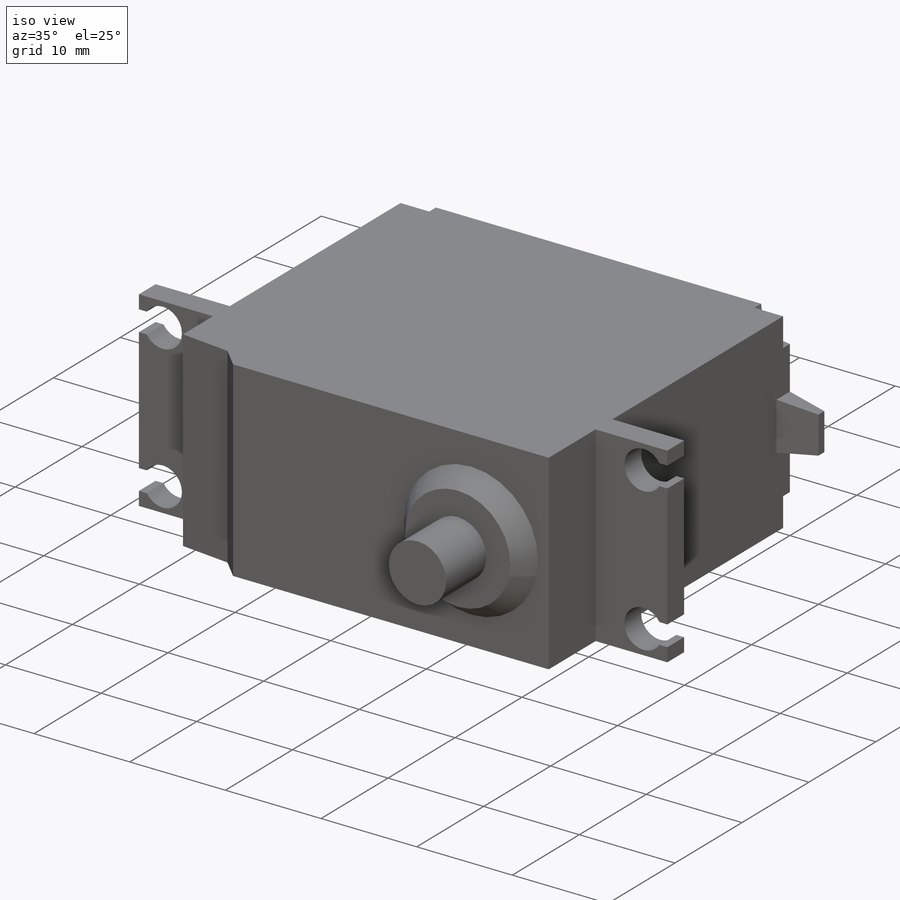
[diagram: iso view]
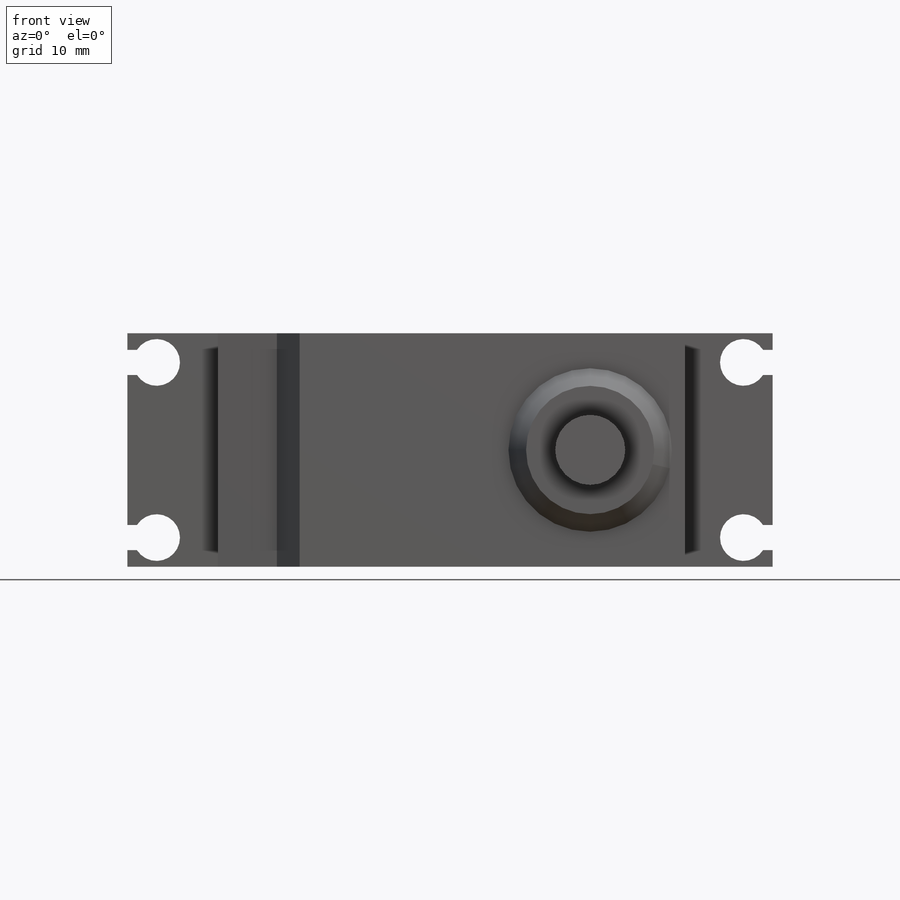
[diagram: front view]
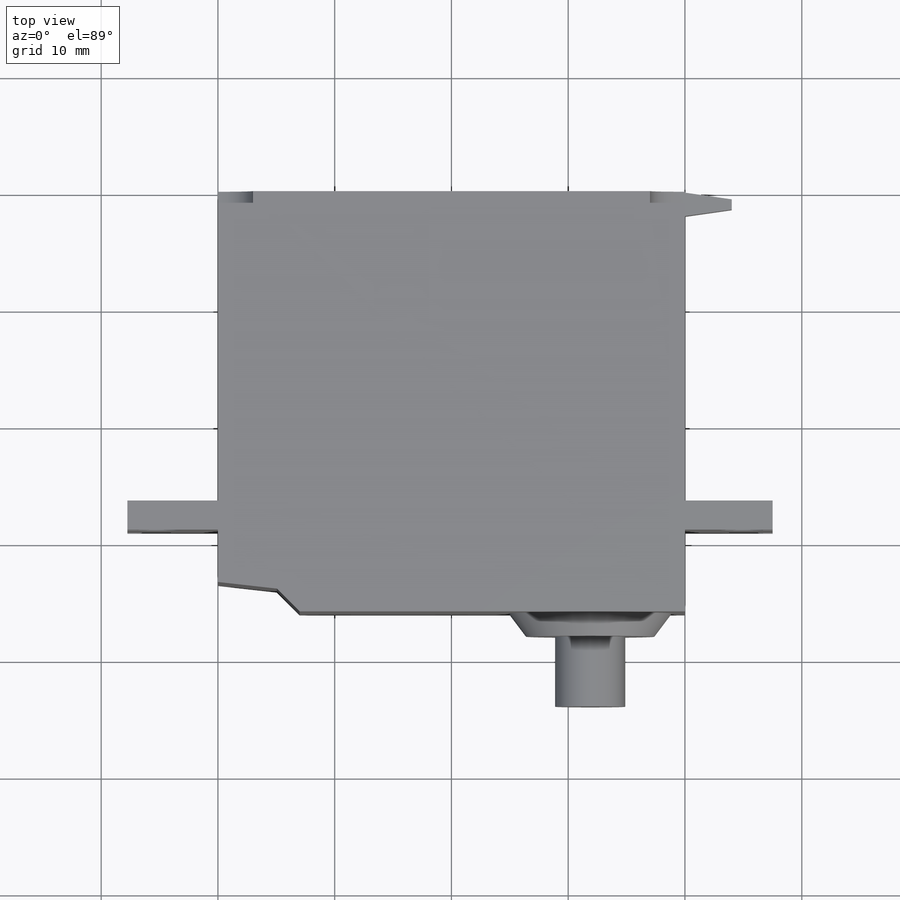
[diagram: top view]
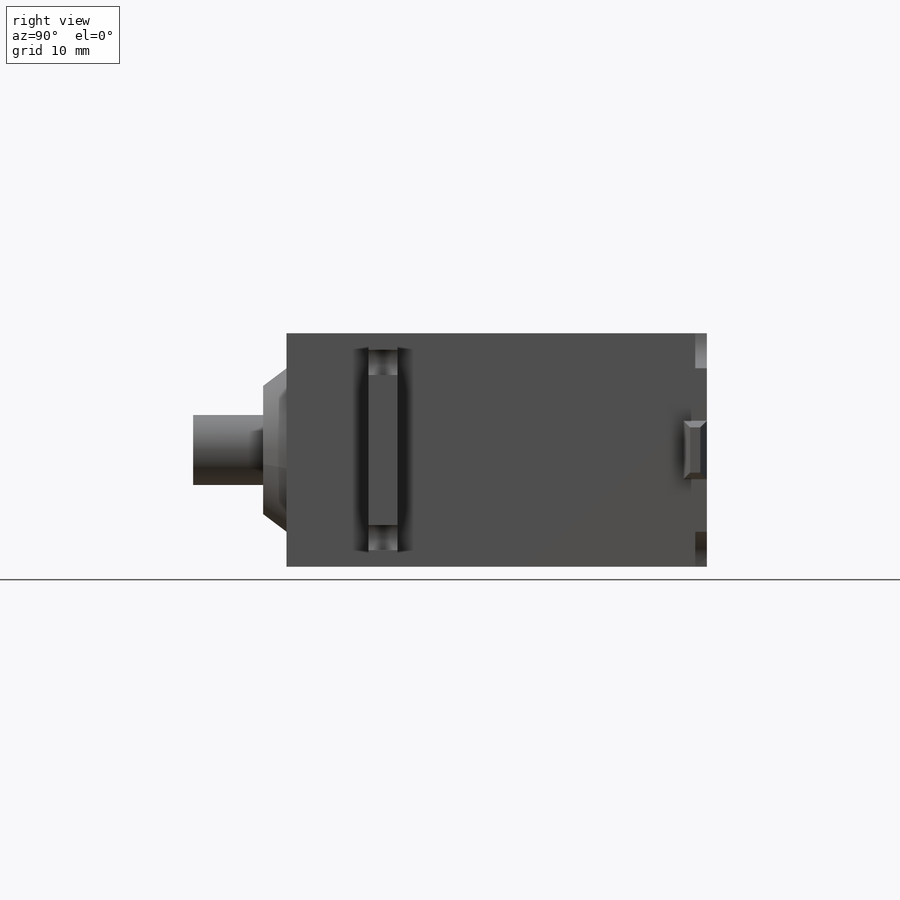
[diagram: right view]
SOLIDWORKS PART (.sldprt)
format: sldprt  version: not decoded by parser v0  size: 327,680 bytes
history: native  units: mm
features: sketch x8, extrude x5, cut_extrude x3, material x1 (+12 scaffold rows collapsed)
feature tree (29):
  scaffold x12  (default folders/planes/origin — collapsed)
  material  "Material <not specified>"
  sketch  "Sketch2"  dims[D1=40.0mm D2=20.0mm]
  extrude  "Extrude1"  Depth=36mm
  sketch  "Sketch3"  dims[D1=2.5mm D2=26.5mm]
  extrude  "Extrude2"  Depth=7.75mm
  sketch  "Sketch4"  dims[D1=3.0mm]
  cut_extrude  "Extrude3"  Depth=1mm
  sketch  "Sketch5"  dims[D1=2.0mm D2=2.5mm]
  extrude  "Extrude4"  Depth=4mm
  sketch  "Sketch6"  dims[c1.D1=4.0mm c1.D7=4.0mm c1.D2=2.5mm c1.D3=2.5mm c1.D4=~0.815432mm c1.D5=27.75mm c1.D6=10.0mm c1.D8=2.5mm c1.D9=2.5mm c1.D10=~0.815432mm c2.D10=90.0deg c3.D10=~0.815432mm]
  cut_extrude  "Extrude7"  Depth=12mm
  sketch  "Sketch8"  dims[D1=14.0mm]
  extrude  "Extrude8"  Depth=2mm
  sketch  "Sketch9"  dims[c1.D1=7.0mm c1.D2=~1.953887mm c1.D3=~5.046113mm c2.D2=~1.953887mm c3.D2=135.0deg c3.D3=~5.046113mm c4.D2=~5.077857mm c5.D2=141.4099deg c5.D3=~1.953887mm c5.D4=~5.046113mm]
  cut_extrude  "Extrude9"  Depth=24mm
  sketch  "Sketch10"  dims[D1=6.0mm]
  extrude  "Extrude10"  Depth=6mm
decode coverage: 16 of 16 modeling features carry decoded parameters
note: ~ marks probable driven/reference dimensions
note: suppression state not decoded; provenance and decode notes live in map.json
